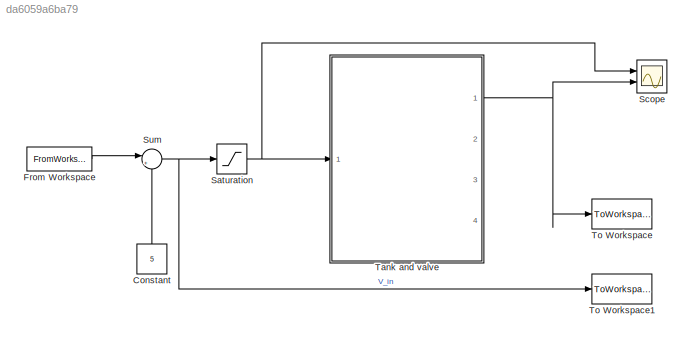
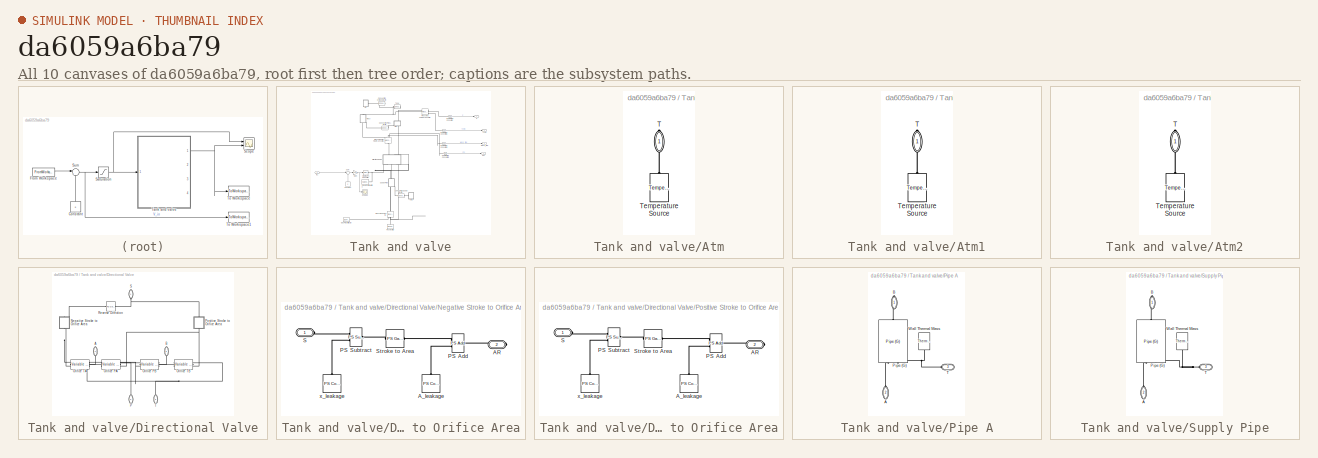
[diagram: thumbnail index - all 10 canvases of the model, root first then tree order]
MODEL slx_da6059a6ba79
KIND model
CONFIG AbsTol = auto
CONFIG EnableMultiTasking = off
CONFIG FixedStep = 1e-3
CONFIG MaxStep = auto
CONFIG MinStep = auto
CONFIG PreLoadFcn = delta_p = 0.6; % MPa\np_init = 0.101325; % MPa\nT_init = 293.15; % K\nT_atm = 293.15; % K\n\nA_valve_max = 4e-6; % m^2\nA_valve_min = 1e-10; % m^2\n\nA_pipe = 5e-6; % m^2\nL_pipe = 1; % m\n\nA_piston = 0.002; % m^2\nL_piston = 0.2; % m
CONFIG RelTol = 1e-3
CONFIG SampleTimeConstraint = Unconstrained
CONFIG Solver = ode15s
CONFIG SolverName = ode15s
CONFIG StartTime = 0.0
CONFIG StopTime = 60
BLOCK [Constant] Constant
  Value = 5
BLOCK [FromWorkspace] From Workspace
  OutputAfterFinalValue = Holding final value
  SampleTime = 0
  VariableName = u_in
  ZeroCross = on
BLOCK [Saturate] Saturation
  InputPortMap = u0
  LowerLimit = 0
  Ports = [1, 1]
  UpperLimit = 10
BLOCK [Scope] Scope
  Floating = off
  NumInputPorts = 2
  Ports = [2]
  ScopeSpecificationString = Simulink.scopes.TimeScopeBlockCfg('CurrentConfiguration', extmgr.ConfigurationSet(extmgr.Configuration('Core','General UI',true),extmgr.Configuration('Core','Source UI',true),extmgr.Configuration('Sources','WiredSimulink',true),extmgr.Configuration('Visuals','Time Domain',true,'SerializedDisplays',{struct('MinYLimReal','1.325','MaxYLimReal','10.075','YLabelReal','','MinYLimMag','1.325','MaxYLimMag...<+2249ch>
BLOCK [Sum] Sum
  IconShape = round
  InputSameDT = off
  Inputs = |++
  OutDataTypeStr = Inherit: Inherit via internal rule
  Ports = [2, 1]
  SaturateOnIntegerOverflow = off
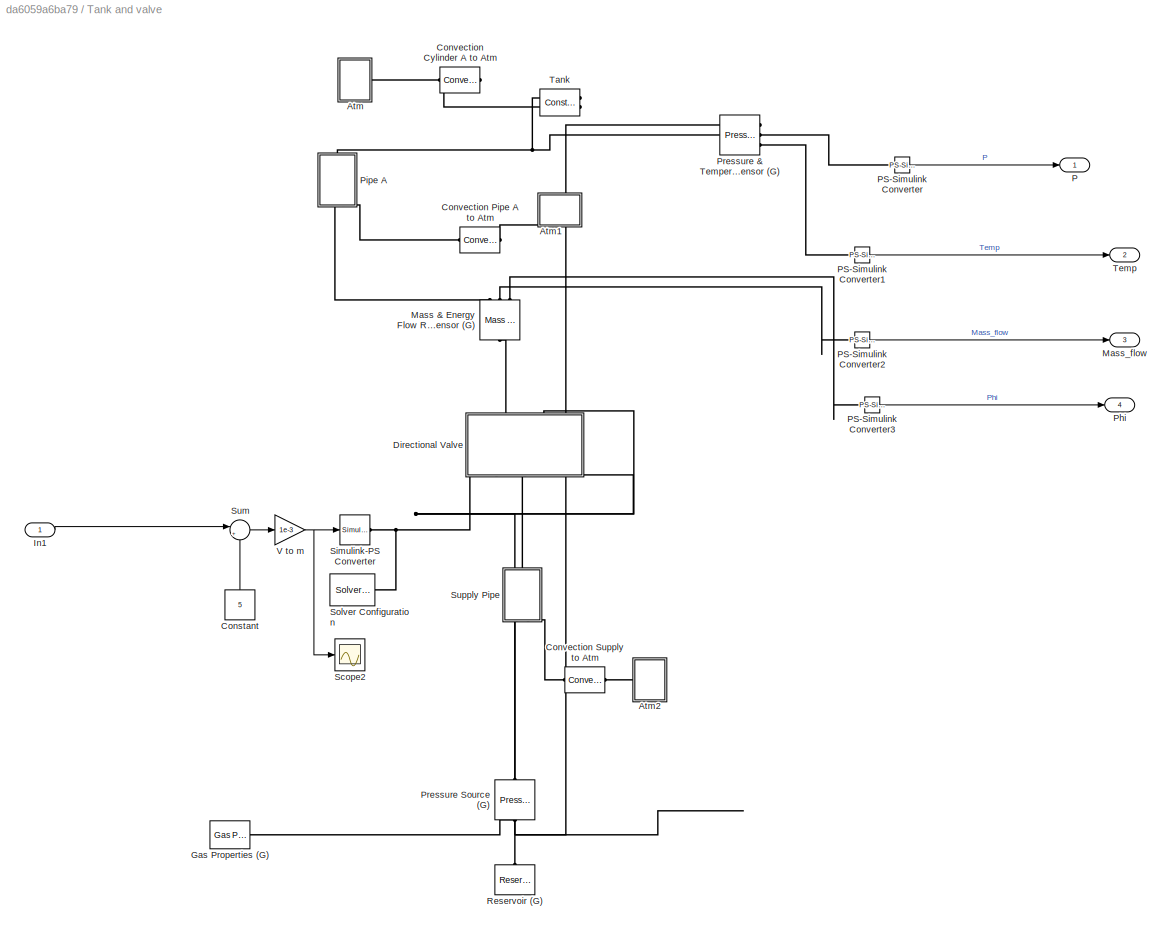
BLOCK [SubSystem] Tank and valve
  Ports = [1, 4]
  RequestExecContextInheritance = off
BLOCK [SubSystem] Tank and valve/Atm
  Ports = [0, 0, 0, 0, 0, 0, 1]
  RequestExecContextInheritance = off
BLOCK [PMIOPort] Tank and valve/Atm/T
  Side = Right
BLOCK [Reference] Tank and valve/Atm/Temperature Source  REF=fl_lib/Thermal/Thermal Sources/Temperature Source
  Ports = [0, 0, 0, 0, 0, 1]
  SourceBlock = fl_lib/Thermal/Thermal Sources/Temperature Source
  SourceProductBaseCode = SS
  SourceProductName = Simscape
  SourceType = Temperature Source
BLOCK [SubSystem] Tank and valve/Atm1
  Ports = [0, 0, 0, 0, 0, 0, 1]
  RequestExecContextInheritance = off
BLOCK [PMIOPort] Tank and valve/Atm1/T
  Side = Right
BLOCK [Reference] Tank and valve/Atm1/Temperature Source  REF=fl_lib/Thermal/Thermal Sources/Temperature Source
  Ports = [0, 0, 0, 0, 0, 1]
  SourceBlock = fl_lib/Thermal/Thermal Sources/Temperature Source
  SourceProductBaseCode = SS
  SourceProductName = Simscape
  SourceType = Temperature Source
BLOCK [SubSystem] Tank and valve/Atm2
  Ports = [0, 0, 0, 0, 0, 0, 1]
  RequestExecContextInheritance = off
BLOCK [PMIOPort] Tank and valve/Atm2/T
  Side = Right
BLOCK [Reference] Tank and valve/Atm2/Temperature Source  REF=fl_lib/Thermal/Thermal Sources/Temperature Source
  Ports = [0, 0, 0, 0, 0, 1]
  SourceBlock = fl_lib/Thermal/Thermal Sources/Temperature Source
  SourceProductBaseCode = SS
  SourceProductName = Simscape
  SourceType = Temperature Source
BLOCK [Constant] Tank and valve/Constant
  Value = 5
BLOCK [Reference] Tank and valve/Convection Cylinder A to Atm  REF=fl_lib/Thermal/Thermal Elements/Convective Heat
Transfer
  Ports = [0, 0, 0, 0, 0, 1, 1]
  SourceBlock = fl_lib/Thermal/Thermal Elements/Convective Heat\nTransfer
  SourceProductBaseCode = SS
  SourceProductName = Simscape
  SourceType = Convective Heat\nTransfer
BLOCK [Reference] Tank and valve/Convection Pipe A to Atm  REF=fl_lib/Thermal/Thermal Elements/Convective Heat
Transfer
  Ports = [0, 0, 0, 0, 0, 1, 1]
  SourceBlock = fl_lib/Thermal/Thermal Elements/Convective Heat\nTransfer
  SourceProductBaseCode = SS
  SourceProductName = Simscape
  SourceType = Convective Heat\nTransfer
BLOCK [Reference] Tank and valve/Convection Supply to Atm  REF=fl_lib/Thermal/Thermal Elements/Convective Heat
Transfer
  Ports = [0, 0, 0, 0, 0, 1, 1]
  SourceBlock = fl_lib/Thermal/Thermal Elements/Convective Heat\nTransfer
  SourceProductBaseCode = SS
  SourceProductName = Simscape
  SourceType = Convective Heat\nTransfer
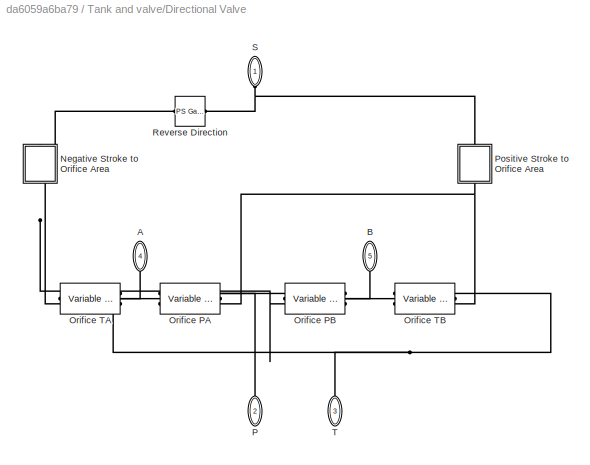
BLOCK [SubSystem] Tank and valve/Directional Valve
  Ports = [0, 0, 0, 0, 0, 3, 2]
  RequestExecContextInheritance = off
  Tag = PublishSubsystem
BLOCK [PMIOPort] Tank and valve/Directional Valve/A
  Port = 4
  Side = Right
BLOCK [PMIOPort] Tank and valve/Directional Valve/B
  Port = 5
  Side = Right
BLOCK [SubSystem] Tank and valve/Directional Valve/Negative Stroke to Orifice Area
  Ports = [0, 0, 0, 0, 0, 1, 1]
  RequestExecContextInheritance = off
BLOCK [PMIOPort] Tank and valve/Directional Valve/Negative Stroke to Orifice Area/AR
  Port = 2
  Side = Right
BLOCK [Reference] Tank and valve/Directional Valve/Negative Stroke to Orifice Area/A_leakage  REF=fl_lib/Physical Signals/Sources/PS Constant
  Ports = [0, 0, 0, 0, 0, 0, 1]
  SourceBlock = fl_lib/Physical Signals/Sources/PS Constant
  SourceProductBaseCode = SS
  SourceProductName = Simscape
  SourceType = PS Constant
BLOCK [Reference] Tank and valve/Directional Valve/Negative Stroke to Orifice Area/PS Add  REF=fl_lib/Physical Signals/Functions/PS Add
  Ports = [0, 0, 0, 0, 0, 2, 1]
  SourceBlock = fl_lib/Physical Signals/Functions/PS Add
  SourceProductBaseCode = SS
  SourceProductName = Simscape
  SourceType = PS Add
BLOCK [Reference] Tank and valve/Directional Valve/Negative Stroke to Orifice Area/PS Subtract  REF=fl_lib/Physical Signals/Functions/PS Subtract
  Ports = [0, 0, 0, 0, 0, 2, 1]
  SourceBlock = fl_lib/Physical Signals/Functions/PS Subtract
  SourceProductBaseCode = SS
  SourceProductName = Simscape
  SourceType = PS Subtract
BLOCK [PMIOPort] Tank and valve/Directional Valve/Negative Stroke to Orifice Area/S
  Side = Left
BLOCK [Reference] Tank and valve/Directional Valve/Negative Stroke to Orifice Area/Stroke to Area  REF=fl_lib/Physical Signals/Functions/PS Gain
  Ports = [0, 0, 0, 0, 0, 1, 1]
  SourceBlock = fl_lib/Physical Signals/Functions/PS Gain
  SourceProductBaseCode = SS
  SourceProductName = Simscape
  SourceType = PS Gain
BLOCK [Reference] Tank and valve/Directional Valve/Negative Stroke to Orifice Area/x_leakage  REF=fl_lib/Physical Signals/Sources/PS Constant
  Ports = [0, 0, 0, 0, 0, 0, 1]
  SourceBlock = fl_lib/Physical Signals/Sources/PS Constant
  SourceProductBaseCode = SS
  SourceProductName = Simscape
  SourceType = PS Constant
BLOCK [Reference] Tank and valve/Directional Valve/Orifice PA  REF=fl_lib/Gas/Elements/Variable Local
Restriction (G)
  Ports = [0, 0, 0, 0, 0, 2, 1]
  SourceBlock = fl_lib/Gas/Elements/Variable Local\nRestriction (G)
  SourceProductBaseCode = SS
  SourceProductName = Simscape
  SourceType = Variable Local\nRestriction (G)
BLOCK [Reference] Tank and valve/Directional Valve/Orifice PB  REF=fl_lib/Gas/Elements/Variable Local
Restriction (G)
  Ports = [0, 0, 0, 0, 0, 2, 1]
  SourceBlock = fl_lib/Gas/Elements/Variable Local\nRestriction (G)
  SourceProductBaseCode = SS
  SourceProductName = Simscape
  SourceType = Variable Local\nRestriction (G)
BLOCK [Reference] Tank and valve/Directional Valve/Orifice TA  REF=fl_lib/Gas/Elements/Variable Local
Restriction (G)
  Ports = [0, 0, 0, 0, 0, 2, 1]
  SourceBlock = fl_lib/Gas/Elements/Variable Local\nRestriction (G)
  SourceProductBaseCode = SS
  SourceProductName = Simscape
  SourceType = Variable Local\nRestriction (G)
BLOCK [Reference] Tank and valve/Directional Valve/Orifice TB  REF=fl_lib/Gas/Elements/Variable Local
Restriction (G)
  Ports = [0, 0, 0, 0, 0, 2, 1]
  SourceBlock = fl_lib/Gas/Elements/Variable Local\nRestriction (G)
  SourceProductBaseCode = SS
  SourceProductName = Simscape
  SourceType = Variable Local\nRestriction (G)
BLOCK [PMIOPort] Tank and valve/Directional Valve/P
  Port = 2
  Side = Left
BLOCK [SubSystem] Tank and valve/Directional Valve/Positive Stroke to Orifice Area
  Ports = [0, 0, 0, 0, 0, 1, 1]
  RequestExecContextInheritance = off
BLOCK [PMIOPort] Tank and valve/Directional Valve/Positive Stroke to Orifice Area/AR
  Port = 2
  Side = Right
BLOCK [Reference] Tank and valve/Directional Valve/Positive Stroke to Orifice Area/A_leakage  REF=fl_lib/Physical Signals/Sources/PS Constant
  Ports = [0, 0, 0, 0, 0, 0, 1]
  SourceBlock = fl_lib/Physical Signals/Sources/PS Constant
  SourceProductBaseCode = SS
  SourceProductName = Simscape
  SourceType = PS Constant
BLOCK [Reference] Tank and valve/Directional Valve/Positive Stroke to Orifice Area/PS Add  REF=fl_lib/Physical Signals/Functions/PS Add
  Ports = [0, 0, 0, 0, 0, 2, 1]
  SourceBlock = fl_lib/Physical Signals/Functions/PS Add
  SourceProductBaseCode = SS
  SourceProductName = Simscape
  SourceType = PS Add
BLOCK [Reference] Tank and valve/Directional Valve/Positive Stroke to Orifice Area/PS Subtract  REF=fl_lib/Physical Signals/Functions/PS Subtract
  Ports = [0, 0, 0, 0, 0, 2, 1]
  SourceBlock = fl_lib/Physical Signals/Functions/PS Subtract
  SourceProductBaseCode = SS
  SourceProductName = Simscape
  SourceType = PS Subtract
BLOCK [PMIOPort] Tank and valve/Directional Valve/Positive Stroke to Orifice Area/S
  Side = Left
BLOCK [Reference] Tank and valve/Directional Valve/Positive Stroke to Orifice Area/Stroke to Area  REF=fl_lib/Physical Signals/Functions/PS Gain
  Ports = [0, 0, 0, 0, 0, 1, 1]
  SourceBlock = fl_lib/Physical Signals/Functions/PS Gain
  SourceProductBaseCode = SS
  SourceProductName = Simscape
  SourceType = PS Gain
BLOCK [Reference] Tank and valve/Directional Valve/Positive Stroke to Orifice Area/x_leakage  REF=fl_lib/Physical Signals/Sources/PS Constant
  Ports = [0, 0, 0, 0, 0, 0, 1]
  SourceBlock = fl_lib/Physical Signals/Sources/PS Constant
  SourceProductBaseCode = SS
  SourceProductName = Simscape
  SourceType = PS Constant
BLOCK [Reference] Tank and valve/Directional Valve/Reverse Direction  REF=fl_lib/Physical Signals/Functions/PS Gain
  Ports = [0, 0, 0, 0, 0, 1, 1]
  SourceBlock = fl_lib/Physical Signals/Functions/PS Gain
  SourceProductBaseCode = SS
  SourceProductName = Simscape
  SourceType = PS Gain
BLOCK [PMIOPort] Tank and valve/Directional Valve/S
  Side = Left
BLOCK [PMIOPort] Tank and valve/Directional Valve/T
  Port = 3
  Side = Left
BLOCK [Reference] Tank and valve/Gas Properties (G)  REF=fl_lib/Gas/Utilities/Gas Properties (G)
  Ports = [0, 0, 0, 0, 0, 0, 1]
  SourceBlock = fl_lib/Gas/Utilities/Gas Properties (G)
  SourceProductBaseCode = SS
  SourceProductName = Simscape
  SourceType = Gas Properties (G)
BLOCK [Inport] Tank and valve/In1
  IconDisplay = Port number
BLOCK [Reference] Tank and valve/Mass & Energy Flow Rate Sensor (G)  REF=fl_lib/Gas/Sensors/Mass & Energy Flow
Rate Sensor (G)
  Ports = [0, 0, 0, 0, 0, 1, 3]
  SourceBlock = fl_lib/Gas/Sensors/Mass & Energy Flow\nRate Sensor (G)
  SourceProductBaseCode = SS
  SourceProductName = Simscape
  SourceType = Mass & Energy Flow\nRate Sensor (G)
BLOCK [Outport] Tank and valve/Mass_flow
  IconDisplay = Port number
  Port = 3
BLOCK [Outport] Tank and valve/P
  IconDisplay = Port number
BLOCK [Reference] Tank and valve/PS-Simulink Converter  REF=nesl_utility/PS-Simulink
Converter
  Ports = [0, 1, 0, 0, 0, 1]
  SourceBlock = nesl_utility/PS-Simulink\nConverter
  SourceProductBaseCode = SS
  SourceProductName = Simscape
  SourceType = PS-Simulink\nConverter
BLOCK [Reference] Tank and valve/PS-Simulink Converter1  REF=nesl_utility/PS-Simulink
Converter
  Ports = [0, 1, 0, 0, 0, 1]
  SourceBlock = nesl_utility/PS-Simulink\nConverter
  SourceProductBaseCode = SS
  SourceProductName = Simscape
  SourceType = PS-Simulink\nConverter
BLOCK [Reference] Tank and valve/PS-Simulink Converter2  REF=nesl_utility/PS-Simulink
Converter
  Ports = [0, 1, 0, 0, 0, 1]
  SourceBlock = nesl_utility/PS-Simulink\nConverter
  SourceProductBaseCode = SS
  SourceProductName = Simscape
  SourceType = PS-Simulink\nConverter
BLOCK [Reference] Tank and valve/PS-Simulink Converter3  REF=nesl_utility/PS-Simulink
Converter
  Ports = [0, 1, 0, 0, 0, 1]
  SourceBlock = nesl_utility/PS-Simulink\nConverter
  SourceProductBaseCode = SS
  SourceProductName = Simscape
  SourceType = PS-Simulink\nConverter
BLOCK [Outport] Tank and valve/Phi
  IconDisplay = Port number
  Port = 4
BLOCK [SubSystem] Tank and valve/Pipe A
  Ports = [0, 0, 0, 0, 0, 2, 1]
  RequestExecContextInheritance = off
BLOCK [PMIOPort] Tank and valve/Pipe A/A
  Port = 2
  Side = Left
BLOCK [PMIOPort] Tank and valve/Pipe A/B
  Side = Right
BLOCK [Reference] Tank and valve/Pipe A/Pipe (G)  REF=fl_lib/Gas/Elements/Pipe (G)
  Ports = [0, 0, 0, 0, 0, 2, 1]
  SourceBlock = fl_lib/Gas/Elements/Pipe (G)
  SourceProductBaseCode = SS
  SourceProductName = Simscape
  SourceType = Pipe (G)
BLOCK [PMIOPort] Tank and valve/Pipe A/T
  Port = 3
  Side = Left
BLOCK [Reference] Tank and valve/Pipe A/Wall Thermal Mass  REF=fl_lib/Thermal/Thermal Elements/Thermal Mass
  Ports = [0, 0, 0, 0, 0, 1]
  SourceBlock = fl_lib/Thermal/Thermal Elements/Thermal Mass
  SourceProductBaseCode = SS
  SourceProductName = Simscape
  SourceType = Thermal Mass
BLOCK [Reference] Tank and valve/Pressure & Temperature Sensor (G)  REF=fl_lib/Gas/Sensors/Pressure &
Temperature Sensor
(G)
  Ports = [0, 0, 0, 0, 0, 1, 3]
  SourceBlock = fl_lib/Gas/Sensors/Pressure &\nTemperature Sensor\n(G)
  SourceProductBaseCode = SS
  SourceProductName = Simscape
  SourceType = Pressure &\nTemperature Sensor\n(G)
BLOCK [Reference] Tank and valve/Pressure Source (G)  REF=fl_lib/Gas/Sources/Pressure Source (G)
  Ports = [0, 0, 0, 0, 0, 1, 1]
  SourceBlock = fl_lib/Gas/Sources/Pressure Source (G)
  SourceProductBaseCode = SS
  SourceProductName = Simscape
  SourceType = Pressure Source (G)
BLOCK [Reference] Tank and valve/Reservoir (G)  REF=fl_lib/Gas/Elements/Reservoir (G)
  Ports = [0, 0, 0, 0, 0, 1]
  SourceBlock = fl_lib/Gas/Elements/Reservoir (G)
  SourceProductBaseCode = SS
  SourceProductName = Simscape
  SourceType = Reservoir (G)
BLOCK [Scope] Tank and valve/Scope2
  Floating = off
  NumInputPorts = 1
  Ports = [1]
  ScopeSpecificationString = Simulink.scopes.TimeScopeBlockCfg('CurrentConfiguration', extmgr.ConfigurationSet(extmgr.Configuration('Core','General UI',true),extmgr.Configuration('Core','Source UI',true),extmgr.Configuration('Sources','WiredSimulink',true,'DataLoggingVariableName','ScopeData2'),extmgr.Configuration('Visuals','Time Domain',true,'SerializedDisplays',{struct('MinYLimReal','-0.00525','MaxYLimReal','0.00525','YLab...<+1419ch>
BLOCK [Reference] Tank and valve/Simulink-PS Converter  REF=nesl_utility/Simulink-PS
Converter
  Ports = [1, 0, 0, 0, 0, 0, 1]
  SourceBlock = nesl_utility/Simulink-PS\nConverter
  SourceProductBaseCode = SS
  SourceProductName = Simscape
  SourceType = Simulink-PS\nConverter
BLOCK [Reference] Tank and valve/Solver Configuration  REF=nesl_utility/Solver
Configuration
  Ports = [0, 0, 0, 0, 0, 0, 1]
  SourceBlock = nesl_utility/Solver\nConfiguration
  SourceProductBaseCode = SS
  SourceProductName = Simscape
  SourceType = Solver\nConfiguration
BLOCK [Sum] Tank and valve/Sum
  IconShape = round
  InputSameDT = off
  Inputs = |+-
  OutDataTypeStr = Inherit: Inherit via internal rule
  Ports = [2, 1]
  SaturateOnIntegerOverflow = off
BLOCK [SubSystem] Tank and valve/Supply Pipe
  Ports = [0, 0, 0, 0, 0, 2, 1]
  RequestExecContextInheritance = off
  Tag = PublishSubsystem
BLOCK [PMIOPort] Tank and valve/Supply Pipe/A
  Port = 2
  Side = Left
BLOCK [PMIOPort] Tank and valve/Supply Pipe/B
  Side = Right
BLOCK [Reference] Tank and valve/Supply Pipe/Pipe (G)  REF=fl_lib/Gas/Elements/Pipe (G)
  Ports = [0, 0, 0, 0, 0, 2, 1]
  SourceBlock = fl_lib/Gas/Elements/Pipe (G)
  SourceProductBaseCode = SS
  SourceProductName = Simscape
  SourceType = Pipe (G)
BLOCK [PMIOPort] Tank and valve/Supply Pipe/T
  Port = 3
  Side = Left
BLOCK [Reference] Tank and valve/Supply Pipe/Wall Thermal Mass  REF=fl_lib/Thermal/Thermal Elements/Thermal Mass
  Ports = [0, 0, 0, 0, 0, 1]
  SourceBlock = fl_lib/Thermal/Thermal Elements/Thermal Mass
  SourceProductBaseCode = SS
  SourceProductName = Simscape
  SourceType = Thermal Mass
BLOCK [Reference] Tank and valve/Tank  REF=fl_lib/Gas/Elements/Constant Volume
Chamber (G)
  Ports = [0, 0, 0, 0, 0, 2]
  SourceBlock = fl_lib/Gas/Elements/Constant Volume\nChamber (G)
  SourceProductBaseCode = SS
  SourceProductName = Simscape
  SourceType = Constant Volume\nChamber (G)
BLOCK [Outport] Tank and valve/Temp
  IconDisplay = Port number
  Port = 2
BLOCK [Gain] Tank and valve/V to m
  Gain = 1e-3
  OutDataTypeStr = Inherit: Inherit via internal rule
  ParamDataTypeStr = Inherit: Inherit via internal rule
  SaturateOnIntegerOverflow = off
BLOCK [ToWorkspace] To Workspace
  FixptAsFi = on
  MaxDataPoints = inf
  Ports = [1]
  SampleTime = -1
  Save2DSignal = 3-D array (concatenate along third dimension)
  SaveFormat = Timeseries
  VariableName = P
BLOCK [ToWorkspace] To Workspace1
  FixptAsFi = on
  MaxDataPoints = inf
  Ports = [1]
  SampleTime = -1
  Save2DSignal = 3-D array (concatenate along third dimension)
  SaveFormat = Timeseries
  VariableName = V_in
LINE Constant:1 -> Sum:2
LINE From Workspace:1 -> Sum:1
NET Saturation:1 -> Scope:1, Tank and valve:1
NET Sum:1 -> Saturation:1, To Workspace1:1
LINE Tank and valve/Constant:1 -> Tank and valve/Sum:2
LINE Tank and valve/In1:1 -> Tank and valve/Sum:1
LINE Tank and valve/PS-Simulink Converter1:1 -> Tank and valve/Temp:1
LINE Tank and valve/PS-Simulink Converter2:1 -> Tank and valve/Mass_flow:1
LINE Tank and valve/PS-Simulink Converter3:1 -> Tank and valve/Phi:1
LINE Tank and valve/PS-Simulink Converter:1 -> Tank and valve/P:1
LINE Tank and valve/Sum:1 -> Tank and valve/V to m:1
NET Tank and valve/V to m:1 -> Tank and valve/Scope2:1, Tank and valve/Simulink-PS Converter:1
NET Tank and valve:1 -> Scope:2, To Workspace:1
PLINE Tank and valve/Atm/T:RConn1 -- Tank and valve/Atm/Temperature Source:LConn1
PLINE Tank and valve/Atm1/T:RConn1 -- Tank and valve/Atm1/Temperature Source:LConn1
PLINE Tank and valve/Atm1:RConn1 -- Tank and valve/Convection Pipe A to Atm:RConn1
PLINE Tank and valve/Atm2/T:RConn1 -- Tank and valve/Atm2/Temperature Source:LConn1
PLINE Tank and valve/Atm2:RConn1 -- Tank and valve/Convection Supply to Atm:RConn1
PLINE Tank and valve/Atm:RConn1 -- Tank and valve/Convection Cylinder A to Atm:RConn1
PLINE Tank and valve/Convection Cylinder A to Atm:LConn1 -- Tank and valve/Tank:LConn2
PLINE Tank and valve/Convection Pipe A to Atm:LConn1 -- Tank and valve/Pipe A:LConn2
PLINE Tank and valve/Convection Supply to Atm:LConn1 -- Tank and valve/Supply Pipe:LConn2
PNET net1: Tank and valve/Directional Valve/A:RConn1 -- Tank and valve/Directional Valve/Orifice PA:RConn1 -- Tank and valve/Directional Valve/Orifice TA:RConn1
PNET net2: Tank and valve/Directional Valve/B:RConn1 -- Tank and valve/Directional Valve/Orifice PB:RConn1 -- Tank and valve/Directional Valve/Orifice TB:RConn1
PLINE Tank and valve/Directional Valve/Negative Stroke to Orifice Area/AR:RConn1 -- Tank and valve/Directional Valve/Negative Stroke to Orifice Area/PS Add:RConn1
PLINE Tank and valve/Directional Valve/Negative Stroke to Orifice Area/A_leakage:RConn1 -- Tank and valve/Directional Valve/Negative Stroke to Orifice Area/PS Add:LConn2
PLINE Tank and valve/Directional Valve/Negative Stroke to Orifice Area/PS Add:LConn1 -- Tank and valve/Directional Valve/Negative Stroke to Orifice Area/Stroke to Area:RConn1
PLINE Tank and valve/Directional Valve/Negative Stroke to Orifice Area/PS Subtract:LConn1 -- Tank and valve/Directional Valve/Negative Stroke to Orifice Area/S:RConn1
PLINE Tank and valve/Directional Valve/Negative Stroke to Orifice Area/PS Subtract:LConn2 -- Tank and valve/Directional Valve/Negative Stroke to Orifice Area/x_leakage:RConn1
PLINE Tank and valve/Directional Valve/Negative Stroke to Orifice Area/PS Subtract:RConn1 -- Tank and valve/Directional Valve/Negative Stroke to Orifice Area/Stroke to Area:LConn1
PLINE Tank and valve/Directional Valve/Negative Stroke to Orifice Area:LConn1 -- Tank and valve/Directional Valve/Reverse Direction:RConn1
PNET net3: Tank and valve/Directional Valve/Negative Stroke to Orifice Area:RConn1 -- Tank and valve/Directional Valve/Orifice PB:LConn2 -- Tank and valve/Directional Valve/Orifice TA:LConn2
PNET net4: Tank and valve/Directional Valve/Orifice PA:LConn1 -- Tank and valve/Directional Valve/Orifice PB:LConn1 -- Tank and valve/Directional Valve/P:RConn1
PNET net5: Tank and valve/Directional Valve/Orifice PA:LConn2 -- Tank and valve/Directional Valve/Orifice TB:LConn2 -- Tank and valve/Directional Valve/Positive Stroke to Orifice Area:RConn1
PNET net6: Tank and valve/Directional Valve/Orifice TA:LConn1 -- Tank and valve/Directional Valve/Orifice TB:LConn1 -- Tank and valve/Directional Valve/T:RConn1
PLINE Tank and valve/Directional Valve/Positive Stroke to Orifice Area/AR:RConn1 -- Tank and valve/Directional Valve/Positive Stroke to Orifice Area/PS Add:RConn1
PLINE Tank and valve/Directional Valve/Positive Stroke to Orifice Area/A_leakage:RConn1 -- Tank and valve/Directional Valve/Positive Stroke to Orifice Area/PS Add:LConn2
PLINE Tank and valve/Directional Valve/Positive Stroke to Orifice Area/PS Add:LConn1 -- Tank and valve/Directional Valve/Positive Stroke to Orifice Area/Stroke to Area:RConn1
PLINE Tank and valve/Directional Valve/Positive Stroke to Orifice Area/PS Subtract:LConn1 -- Tank and valve/Directional Valve/Positive Stroke to Orifice Area/S:RConn1
PLINE Tank and valve/Directional Valve/Positive Stroke to Orifice Area/PS Subtract:LConn2 -- Tank and valve/Directional Valve/Positive Stroke to Orifice Area/x_leakage:RConn1
PLINE Tank and valve/Directional Valve/Positive Stroke to Orifice Area/PS Subtract:RConn1 -- Tank and valve/Directional Valve/Positive Stroke to Orifice Area/Stroke to Area:LConn1
PNET net7: Tank and valve/Directional Valve/Positive Stroke to Orifice Area:LConn1 -- Tank and valve/Directional Valve/Reverse Direction:LConn1 -- Tank and valve/Directional Valve/S:RConn1
PNET net8: Tank and valve/Directional Valve:LConn1 -- Tank and valve/Simulink-PS Converter:RConn1 -- Tank and valve/Solver Configuration:RConn1
PLINE Tank and valve/Directional Valve:LConn2 -- Tank and valve/Supply Pipe:RConn1
PNET net9: Tank and valve/Directional Valve:LConn3 -- Tank and valve/Directional Valve:RConn2 -- Tank and valve/Gas Properties (G):RConn1 -- Tank and valve/Pressure & Temperature Sensor (G):RConn1 -- Tank and valve/Pressure Source (G):LConn1 -- Tank and valve/Reservoir (G):LConn1
PLINE Tank and valve/Directional Valve:RConn1 -- Tank and valve/Mass & Energy Flow Rate Sensor (G):LConn1
PLINE Tank and valve/Mass & Energy Flow Rate Sensor (G):RConn1 -- Tank and valve/Pipe A:LConn1
PLINE Tank and valve/Mass & Energy Flow Rate Sensor (G):RConn2 -- Tank and valve/PS-Simulink Converter2:LConn1
PLINE Tank and valve/Mass & Energy Flow Rate Sensor (G):RConn3 -- Tank and valve/PS-Simulink Converter3:LConn1
PLINE Tank and valve/PS-Simulink Converter1:LConn1 -- Tank and valve/Pressure & Temperature Sensor (G):RConn3
PLINE Tank and valve/PS-Simulink Converter:LConn1 -- Tank and valve/Pressure & Temperature Sensor (G):RConn2
PLINE Tank and valve/Pipe A/A:RConn1 -- Tank and valve/Pipe A/Pipe (G):LConn1
PLINE Tank and valve/Pipe A/B:RConn1 -- Tank and valve/Pipe A/Pipe (G):RConn1
PNET net10: Tank and valve/Pipe A/Pipe (G):LConn2 -- Tank and valve/Pipe A/T:RConn1 -- Tank and valve/Pipe A/Wall Thermal Mass:LConn1
PNET net11: Tank and valve/Pipe A:RConn1 -- Tank and valve/Pressure & Temperature Sensor (G):LConn1 -- Tank and valve/Tank:LConn1
PLINE Tank and valve/Pressure Source (G):RConn1 -- Tank and valve/Supply Pipe:LConn1
PLINE Tank and valve/Supply Pipe/A:RConn1 -- Tank and valve/Supply Pipe/Pipe (G):LConn1
PLINE Tank and valve/Supply Pipe/B:RConn1 -- Tank and valve/Supply Pipe/Pipe (G):RConn1
PNET net12: Tank and valve/Supply Pipe/Pipe (G):LConn2 -- Tank and valve/Supply Pipe/T:RConn1 -- Tank and valve/Supply Pipe/Wall Thermal Mass:LConn1
note: NET lines group one-source signal fan-out (src -> all destinations, sorted); 1:1 wires keep LINE; PNET lines group multi-terminal physical nets as a canonical sorted terminal list (undirected conserving connections); 2-terminal nets keep the pairwise PLINE form
